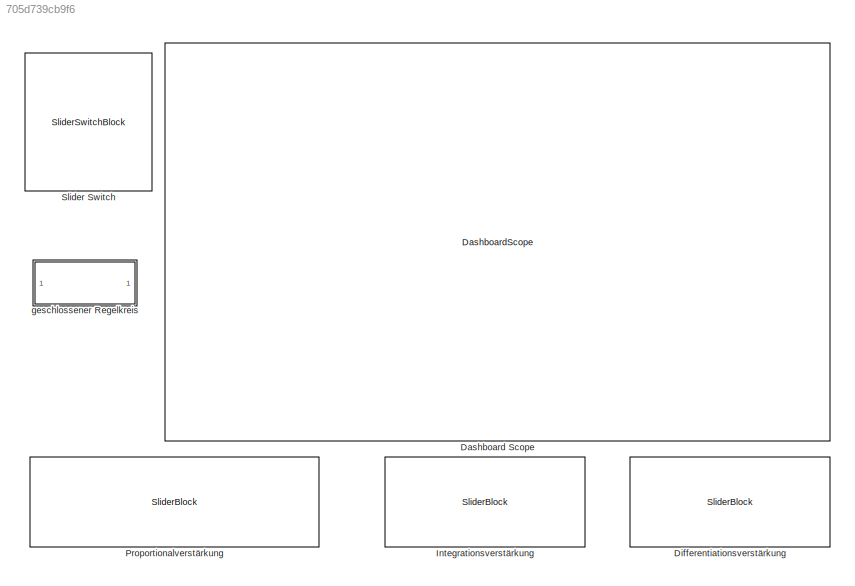
MODEL slx_705d739cb9f6
KIND model
CONFIG AbsTol = auto
CONFIG EnableMultiTasking = off
CONFIG FixedStep = auto
CONFIG MaxStep = auto
CONFIG MinStep = auto
CONFIG RelTol = 1e-3
CONFIG SampleTimeConstraint = Unconstrained
CONFIG SolverName = VariableStepAuto
CONFIG StartTime = 0.0
CONFIG StopTime = 10.0
BLOCK [DashboardScope] Dashboard Scope
BLOCK [SliderBlock] Differentiationsverstärkung
  LabelPosition = Hide
  ScaleMax = 2
  TickInterval = 0.5
BLOCK [SliderBlock] Integrationsverstärkung
  LabelPosition = Hide
  ScaleMax = 10
BLOCK [SliderBlock] Proportionalverstärkung
  LabelPosition = Hide
  ScaleMax = 20
BLOCK [SliderSwitchBlock] Slider Switch
  LabelPosition = Hide
  NameLocation = top
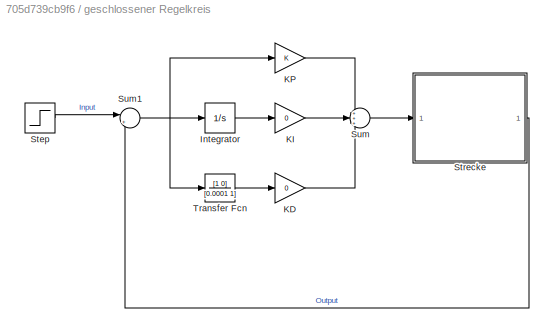
BLOCK [SubSystem] geschlossener Regelkreis
BLOCK [Integrator] geschlossener Regelkreis/Integrator
BLOCK [Gain] geschlossener Regelkreis/KD
  Gain = 0
BLOCK [Gain] geschlossener Regelkreis/KI
  Gain = 0
BLOCK [Gain] geschlossener Regelkreis/KP
BLOCK [Step] geschlossener Regelkreis/Step
  SampleTime = 0
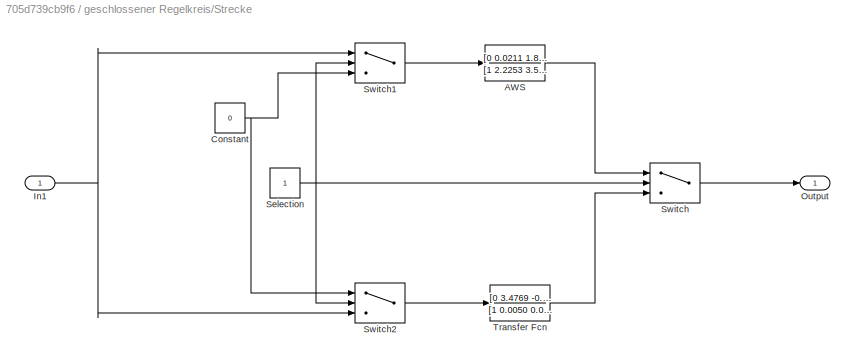
BLOCK [SubSystem] geschlossener Regelkreis/Strecke
BLOCK [TransferFcn] geschlossener Regelkreis/Strecke/AWS
  Denominator = [1 2.2253 3.5845]
  Numerator = [0 0.0211 1.8396]
BLOCK [Constant] geschlossener Regelkreis/Strecke/Constant
  Value = 0
BLOCK [Inport] geschlossener Regelkreis/Strecke/In1
BLOCK [Outport] geschlossener Regelkreis/Strecke/Output
BLOCK [Constant] geschlossener Regelkreis/Strecke/Selection
BLOCK [Switch] geschlossener Regelkreis/Strecke/Switch
  Criteria = u2 > Threshold
  InputSameDT = off
  SaturateOnIntegerOverflow = off
BLOCK [Switch] geschlossener Regelkreis/Strecke/Switch1
  Criteria = u2 > Threshold
  InputSameDT = off
  SaturateOnIntegerOverflow = off
BLOCK [Switch] geschlossener Regelkreis/Strecke/Switch2
  Criteria = u2 > Threshold
  InputSameDT = off
  SaturateOnIntegerOverflow = off
BLOCK [TransferFcn] geschlossener Regelkreis/Strecke/Transfer Fcn
  Denominator = [1 0.0050 0.0028]
  Numerator = [0 3.4769 -0.0049]/10
BLOCK [Sum] geschlossener Regelkreis/Sum
  Inputs = +++
BLOCK [Sum] geschlossener Regelkreis/Sum1
  Inputs = |+-
BLOCK [TransferFcn] geschlossener Regelkreis/Transfer Fcn
  Denominator = [0.0001 1]
  Numerator = [1 0]
LINE geschlossener Regelkreis/Integrator:1 -> geschlossener Regelkreis/KI:1
LINE geschlossener Regelkreis/KD:1 -> geschlossener Regelkreis/Sum:3
LINE geschlossener Regelkreis/KI:1 -> geschlossener Regelkreis/Sum:2
LINE geschlossener Regelkreis/KP:1 -> geschlossener Regelkreis/Sum:1
LINE geschlossener Regelkreis/Step:1 -> geschlossener Regelkreis/Sum1:1
LINE geschlossener Regelkreis/Strecke/AWS:1 -> geschlossener Regelkreis/Strecke/Switch:1
NET geschlossener Regelkreis/Strecke/Constant:1 -> geschlossener Regelkreis/Strecke/Switch1:3, geschlossener Regelkreis/Strecke/Switch2:1
NET geschlossener Regelkreis/Strecke/In1:1 -> geschlossener Regelkreis/Strecke/Switch1:1, geschlossener Regelkreis/Strecke/Switch2:3
NET geschlossener Regelkreis/Strecke/Selection:1 -> geschlossener Regelkreis/Strecke/Switch1:2, geschlossener Regelkreis/Strecke/Switch2:2, geschlossener Regelkreis/Strecke/Switch:2
LINE geschlossener Regelkreis/Strecke/Switch1:1 -> geschlossener Regelkreis/Strecke/AWS:1
LINE geschlossener Regelkreis/Strecke/Switch2:1 -> geschlossener Regelkreis/Strecke/Transfer Fcn:1
LINE geschlossener Regelkreis/Strecke/Switch:1 -> geschlossener Regelkreis/Strecke/Output:1
LINE geschlossener Regelkreis/Strecke/Transfer Fcn:1 -> geschlossener Regelkreis/Strecke/Switch:3
LINE geschlossener Regelkreis/Strecke:1 -> geschlossener Regelkreis/Sum1:2
NET geschlossener Regelkreis/Sum1:1 -> geschlossener Regelkreis/Integrator:1, geschlossener Regelkreis/KP:1, geschlossener Regelkreis/Transfer Fcn:1
LINE geschlossener Regelkreis/Sum:1 -> geschlossener Regelkreis/Strecke:1
LINE geschlossener Regelkreis/Transfer Fcn:1 -> geschlossener Regelkreis/KD:1
note: NET lines group one-source signal fan-out (src -> all destinations, sorted); 1:1 wires keep LINE
